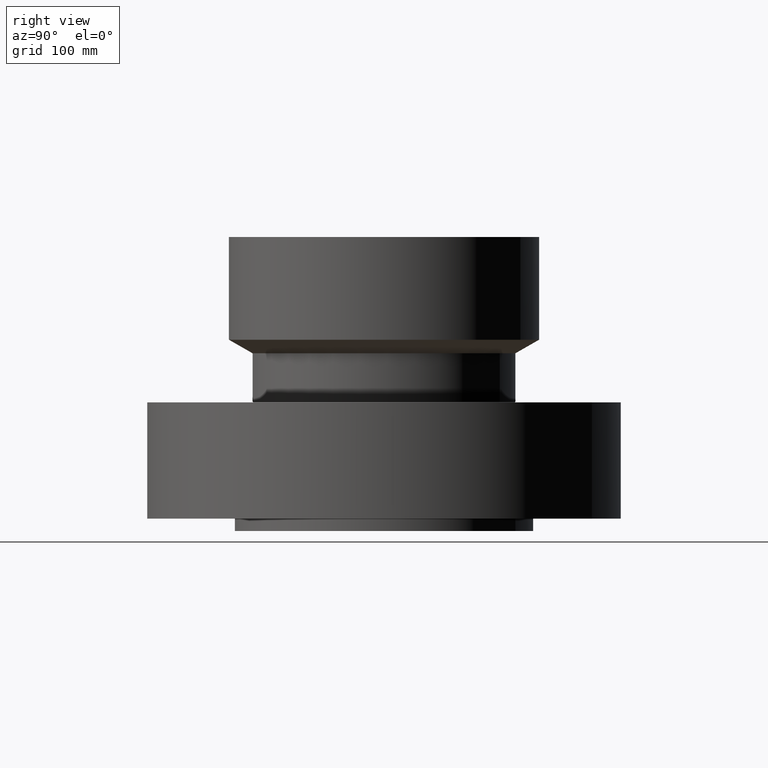
[diagram: clean part render]
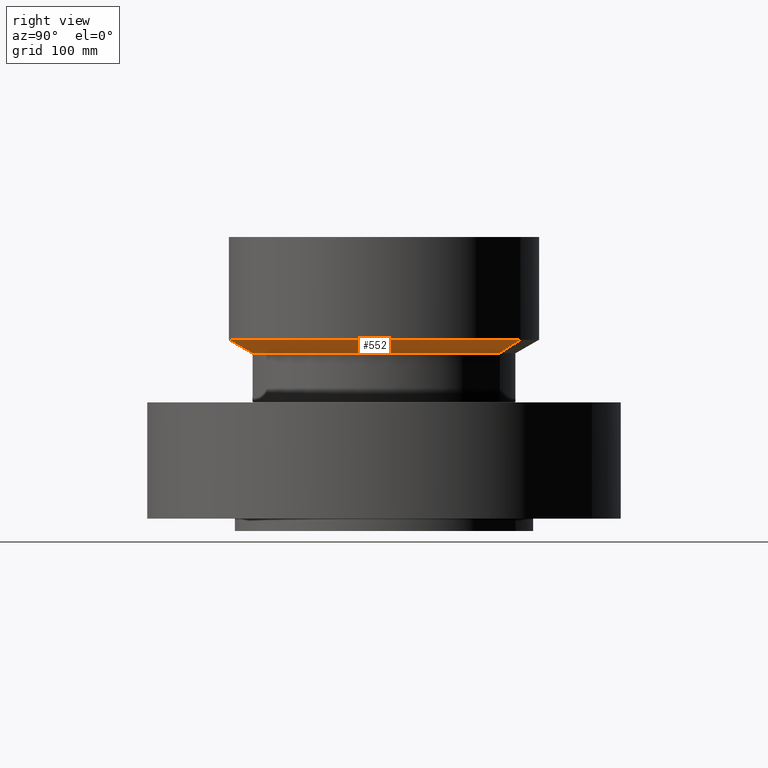
[diagram: same view with one face highlighted and labeled with its STEP entity id]
A machine part, right view. The second image highlights one B-rep face of the part: STEP entity #552.
In plain terms, the highlighted conical surface has half-angle 60 deg.
Its self-contained STEP definition (entity closure, byte-faithful):
#493=AXIS2_PLACEMENT_3D('Circle Axis2P3D',#491,#492,$) ;
#525=AXIS2_PLACEMENT_3D('Cone Axis2P3D',#522,#523,#524) ;
#536=AXIS2_PLACEMENT_3D('Circle Axis2P3D',#534,#535,$) ;
#488=CARTESIAN_POINT('Vertex',(3.53576334722,6.47217139397,9.25000000004)) ;
#491=CARTESIAN_POINT('Axis2P3D Location',(0.,0.,9.25000000004)) ;
#495=CARTESIAN_POINT('Vertex',(-3.53576334722,-6.47217139397,9.25000000004)) ;
#522=CARTESIAN_POINT('Axis2P3D Location',(0.,0.,9.25000000004)) ;
#527=CARTESIAN_POINT('Line Origine',(3.85098563885,7.04918192841,9.62960780203)) ;
#531=CARTESIAN_POINT('Vertex',(4.16620793049,7.62619246286,10.009215604)) ;
#534=CARTESIAN_POINT('Axis2P3D Location',(0.,0.,10.009215604)) ;
#538=CARTESIAN_POINT('Vertex',(-4.16620793049,-7.62619246286,10.009215604)) ;
#541=CARTESIAN_POINT('Line Origine',(-3.85098563885,-7.04918192841,9.62960780203)) ;
#492=DIRECTION('Axis2P3D Direction',(0.,0.,-0.0393700787402)) ;
#523=DIRECTION('Axis2P3D Direction',(-0.,-0.,0.0393700787402)) ;
#524=DIRECTION('Axis2P3D XDirection',(0.0188750212049,0.0345504945626,0.)) ;
#528=DIRECTION('Vector Direction',(0.0163462478604,0.0299216060045,0.0196850393701)) ;
#535=DIRECTION('Axis2P3D Direction',(-0.,0.,0.0393700787402)) ;
#542=DIRECTION('Vector Direction',(-0.0163462478604,-0.0299216060045,0.0196850393701)) ;
#529=VECTOR('Line Direction',#528,0.0393700787402) ;
#543=VECTOR('Line Direction',#542,0.0393700787402) ;
#547=ORIENTED_EDGE('',*,*,#497,.F.) ;
#548=ORIENTED_EDGE('',*,*,#533,.T.) ;
#549=ORIENTED_EDGE('',*,*,#540,.T.) ;
#550=ORIENTED_EDGE('',*,*,#545,.F.) ;
#552=ADVANCED_FACE('PartBody',(#551),#526,.T.) ;
#494=CIRCLE('generated circle',#493,7.37500000003) ;
#537=CIRCLE('generated circle',#536,8.69000000003) ;
#526=CONICAL_SURFACE('Cone',#525,7.37500000003,1.0471975512) ;
#497=EDGE_CURVE('',#489,#496,#494,.T.) ;
#533=EDGE_CURVE('',#489,#532,#530,.T.) ;
#540=EDGE_CURVE('',#532,#539,#537,.F.) ;
#545=EDGE_CURVE('',#496,#539,#544,.T.) ;
#546=EDGE_LOOP('',(#547,#548,#549,#550)) ;
#551=FACE_OUTER_BOUND('',#546,.T.) ;
#530=LINE('Line',#527,#529) ;
#544=LINE('Line',#541,#543) ;
#489=VERTEX_POINT('',#488) ;
#496=VERTEX_POINT('',#495) ;
#532=VERTEX_POINT('',#531) ;
#539=VERTEX_POINT('',#538) ;